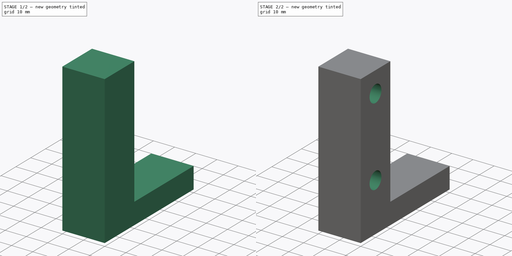
[diagram: build sequence overview — one tinted view per stage of 2, left to right]
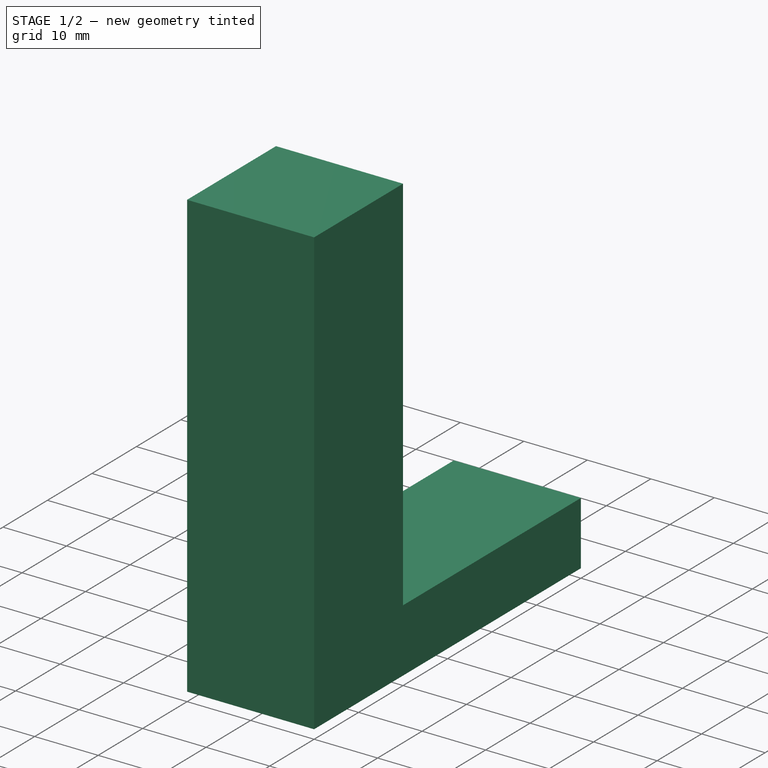
[diagram: stage 1 of 2 — iso view after this stage's code; geometry added in this stage tinted green]
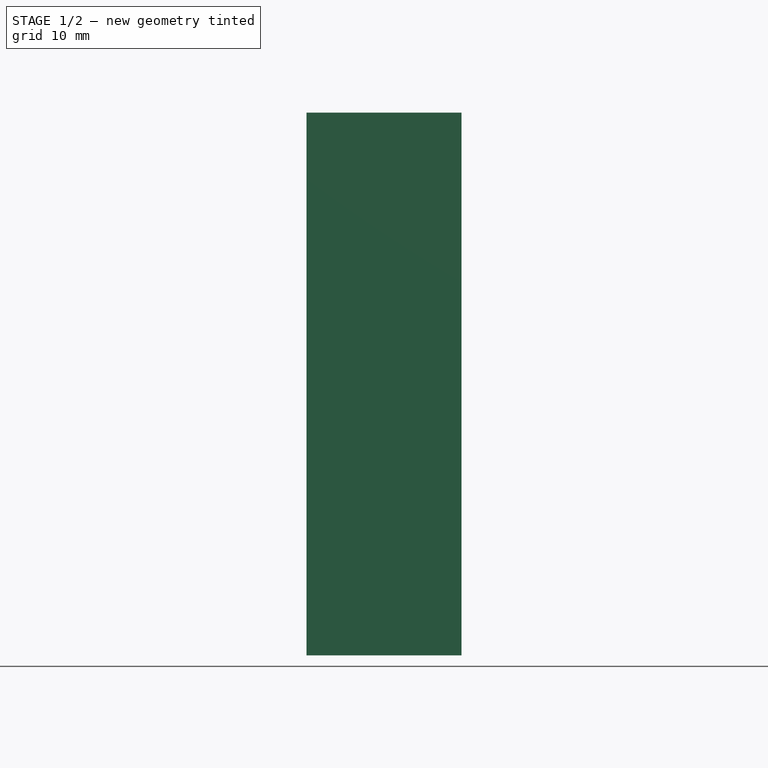
[diagram: stage 1 of 2 — front view after this stage's code; geometry added in this stage tinted green]
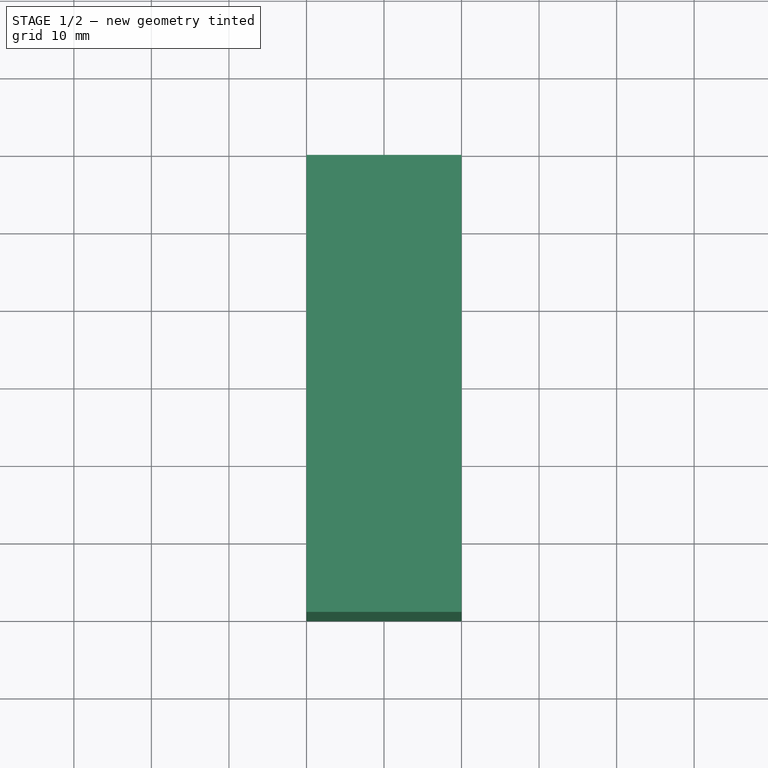
[diagram: stage 1 of 2 — top view after this stage's code; geometry added in this stage tinted green]
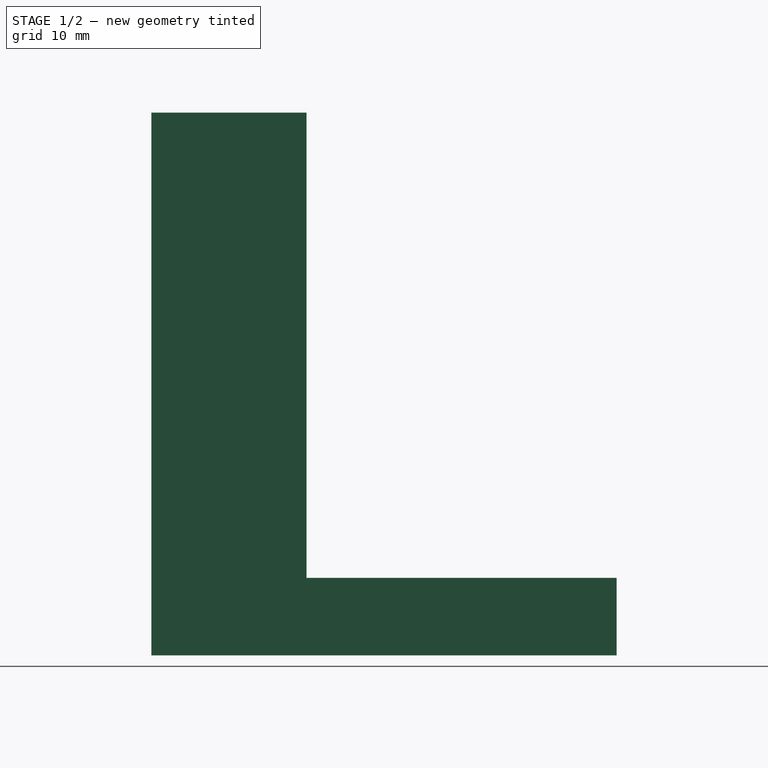
[diagram: stage 1 of 2 — right view after this stage's code; geometry added in this stage tinted green]
FCSTD DOCUMENT  (FreeCAD 0.15R4671 (Git))
Label: Hotwheel_SoportEjeY_V2
License: All rights reserved
LicenseURL: http://es.wikipedia.org/wiki/Todos_los_derechos_reservados
objects: Sketcher::SketchObject×2, PartDesign::Pad×1, PartDesign::Pocket×1
note: 6 computed .brp shape members not serialized (recipe doc carries the construction recipe); baked Part::Feature solids carry a one-line shape summary decoded from their .brp

FEATURE [Sketcher::SketchObject] Sketch
  Placement = pos=(0,0,0) rot=(0.57735,0.57735,0.57735;2.0944rad)
  sketch-geometry (6):
    g0: LineSegment StartX=-10 StartY=35 StartZ=0 EndX=-10 EndY=-35 EndZ=0
    g1: LineSegment StartX=-10 StartY=-35 StartZ=0 EndX=50 EndY=-35 EndZ=0
    g2: LineSegment StartX=50 StartY=-35 StartZ=0 EndX=50 EndY=-25 EndZ=0
    g3: LineSegment StartX=50 StartY=-25 StartZ=0 EndX=10 EndY=-25 EndZ=0
    g4: LineSegment StartX=10 StartY=-25 StartZ=0 EndX=10 EndY=35 EndZ=0
    g5: LineSegment StartX=10 StartY=35 StartZ=0 EndX=-10 EndY=35 EndZ=0
  constraints (18):
    c: Coincident(g0,g1)
    c: Horizontal(g1)
    c: Coincident(g1,g2)
    c: Vertical(g2)
    c: Coincident(g2,g3)
    c: Horizontal(g3)
    c: Coincident(g3,g4)
    c: Coincident(g4,g5)
    c: Coincident(g5,g0)
    c: Horizontal(g5)
    c: Vertical(g4)
    c: Vertical(g0)
    c: DistanceY(g2) = 10
    c: DistanceY(g0) = -70
    c: DistanceX(g1) = 60
    c: DistanceX(g5) = -20
    c: DistanceX(g-1,g4) = 10
    c: DistanceY(g-1,g0) = 35
FEATURE [PartDesign::Pad] Pad
  Length = 20
  Length2 = 100
  Placement = pos=(0,0,0) rot=(0.57735,0.57735,0.57735;2.0944rad)
  Sketch = -> Sketch
  Type = 0
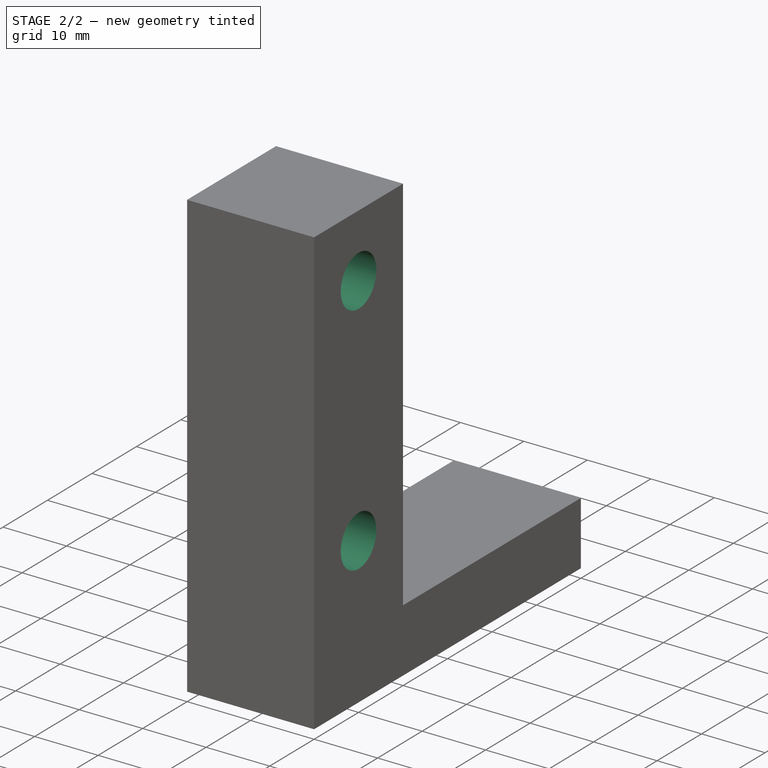
[diagram: stage 2 of 2 — iso view after this stage's code; geometry added in this stage tinted green]
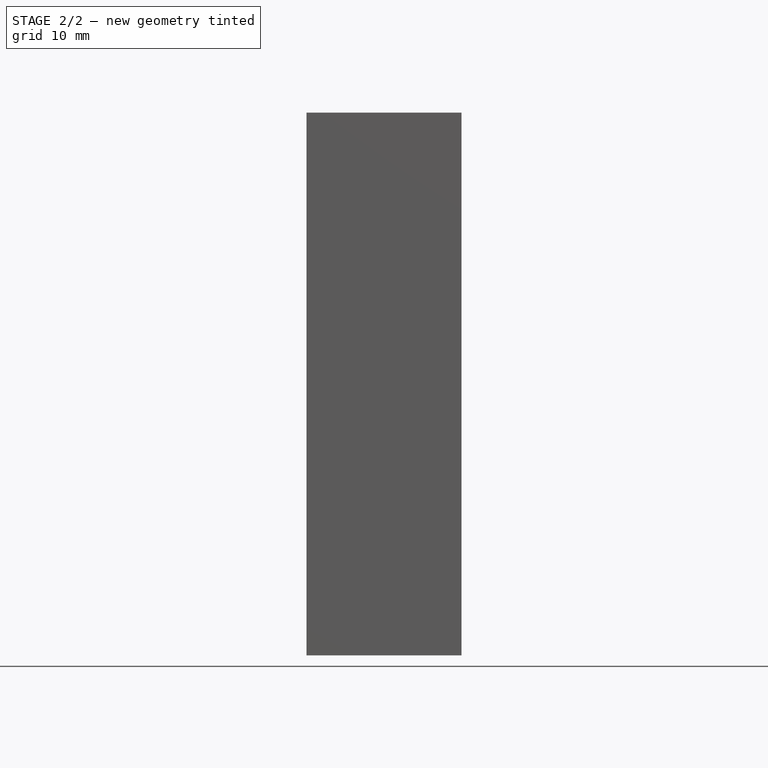
[diagram: stage 2 of 2 — front view after this stage's code; geometry added in this stage tinted green]
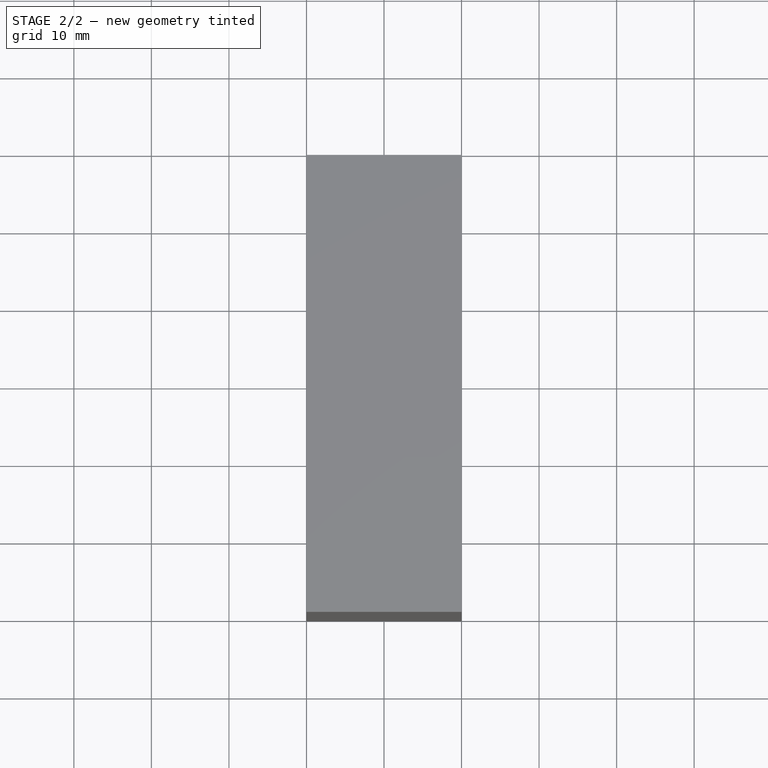
[diagram: stage 2 of 2 — top view after this stage's code; geometry added in this stage tinted green]
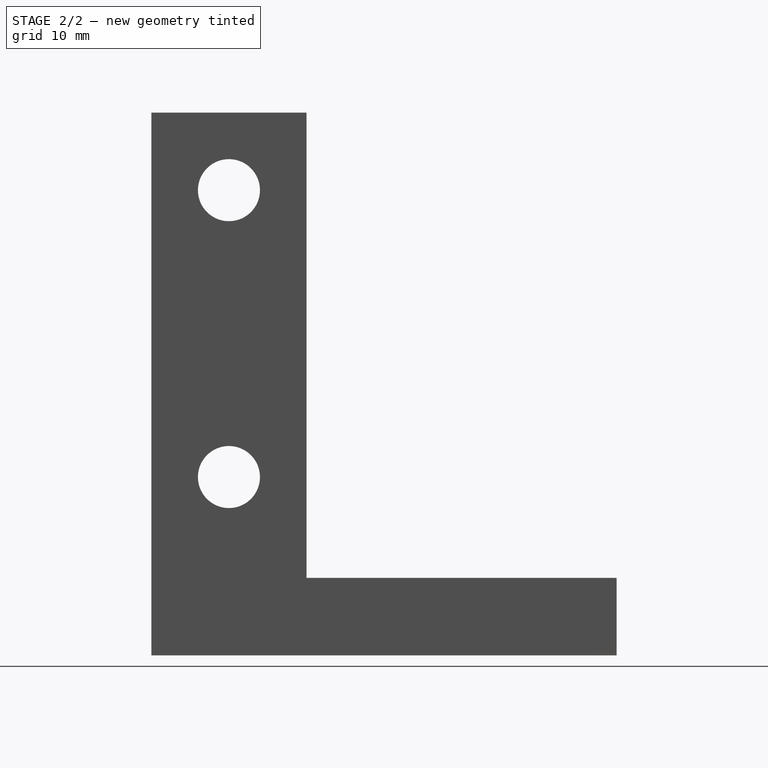
[diagram: stage 2 of 2 — right view after this stage's code; geometry added in this stage tinted green]
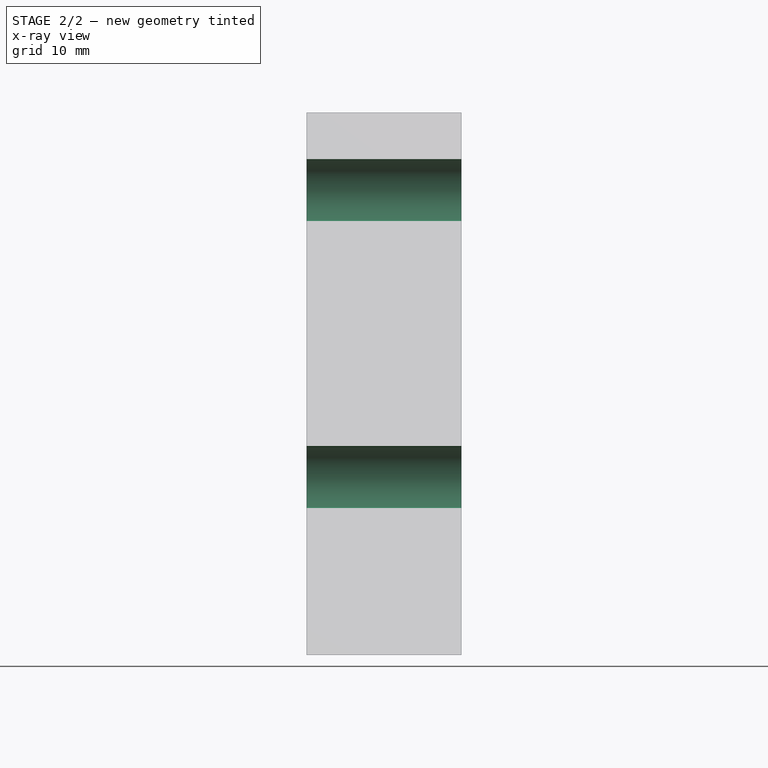
[diagram: stage 2 of 2 — x-ray composite at the front view; earlier geometry ghosted, this stage's added geometry solid]
FEATURE [Sketcher::SketchObject] Sketch001
  Placement = pos=(20,0,0) rot=(0.57735,0.57735,0.57735;2.0944rad)
  Support = -> Pad [Face8]
  sketch-geometry (2):
    g0: Circle CenterX=0 CenterY=25 CenterZ=0 NormalX=0 NormalY=0 NormalZ=1 Radius=4
    g1: Circle CenterX=0 CenterY=-12 CenterZ=0 NormalX=0 NormalY=0 NormalZ=1 Radius=4
  constraints (6):
    c: DistanceY(g-1,g0) = 25
    c: DistanceX(g-1,g0) = 0
    c: Radius(g0) = 4
    c: Radius(g1) = 4
    c: DistanceX(g-1,g1) = 0
    c: DistanceY(g1,g0) = 37
FEATURE [PartDesign::Pocket] Pocket
  Length = 20
  Placement = pos=(0,0,0) rot=(0.57735,0.57735,0.57735;2.0944rad)
  Sketch = -> Sketch001
  Type = 0
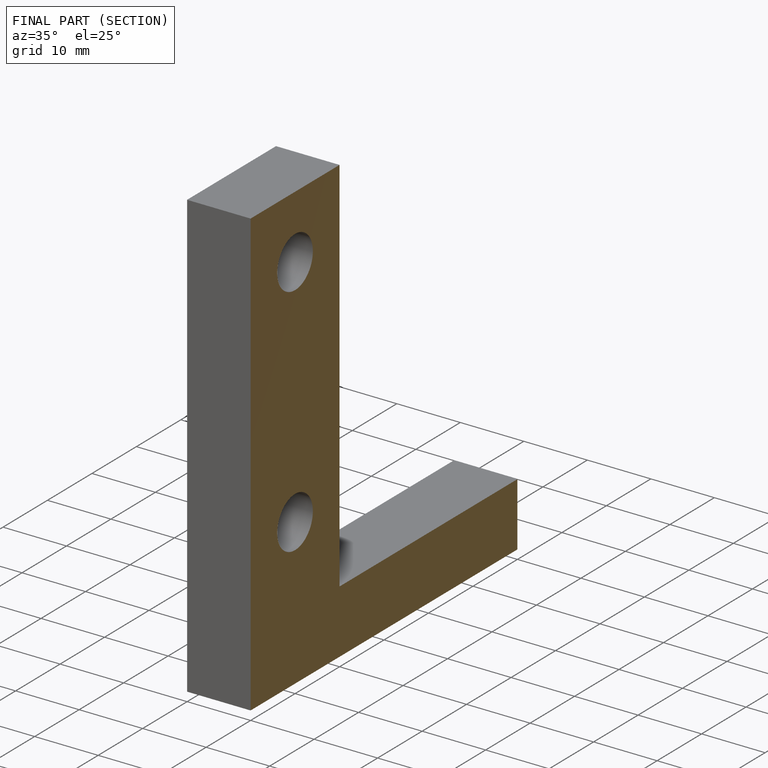
[diagram: finished part — half-section view (interior)]
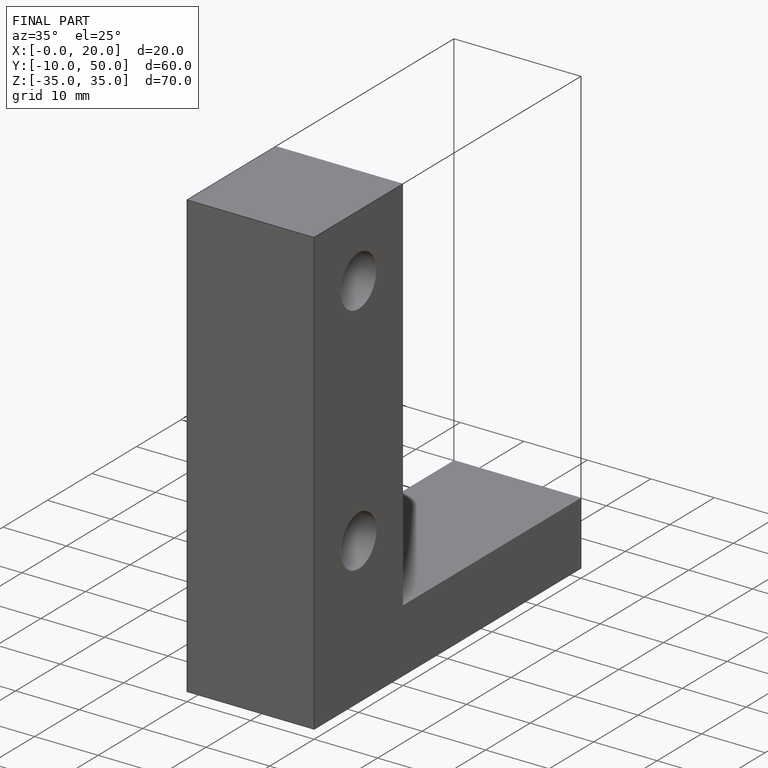
[diagram: finished part — iso view with bounding-box wireframe]
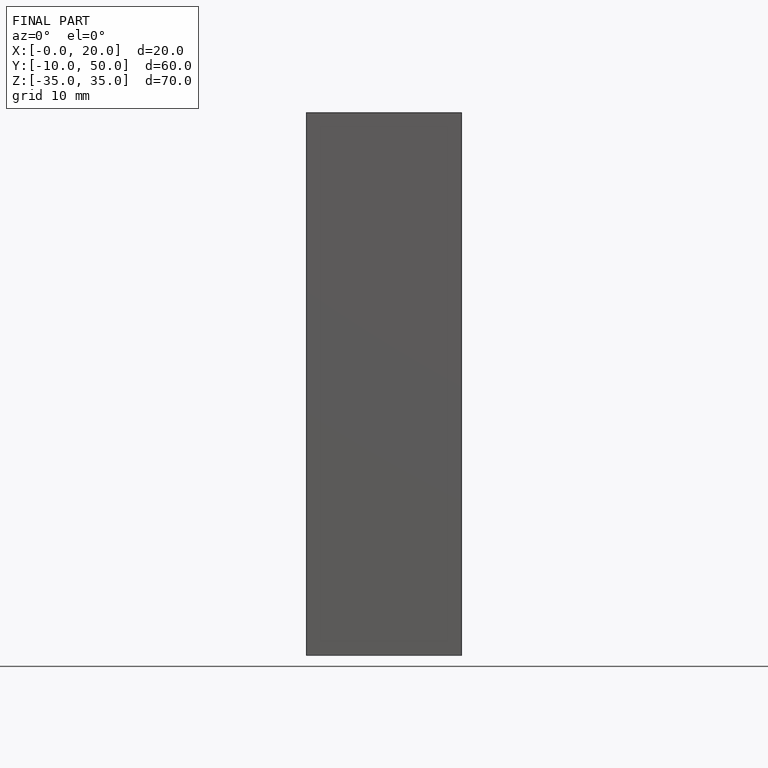
[diagram: finished part — front view with bounding-box wireframe]
